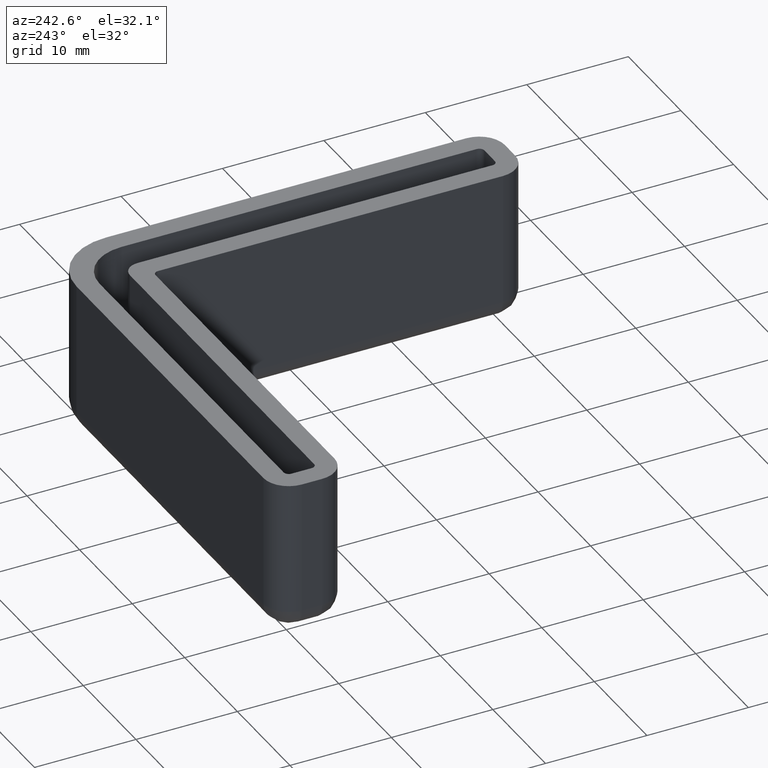
[diagram: clean part render]
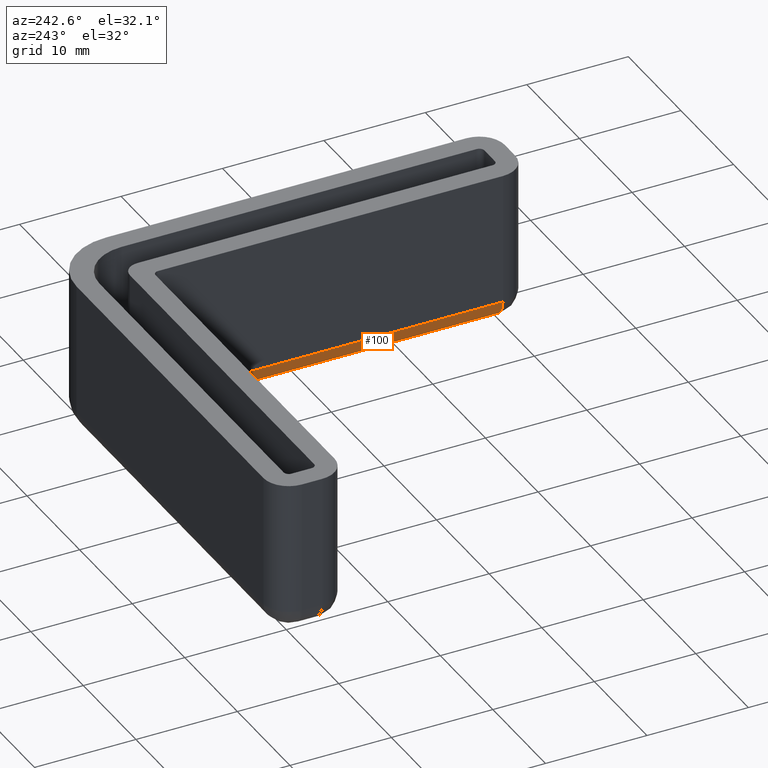
[diagram: same view with one face highlighted and labeled with its STEP entity id]
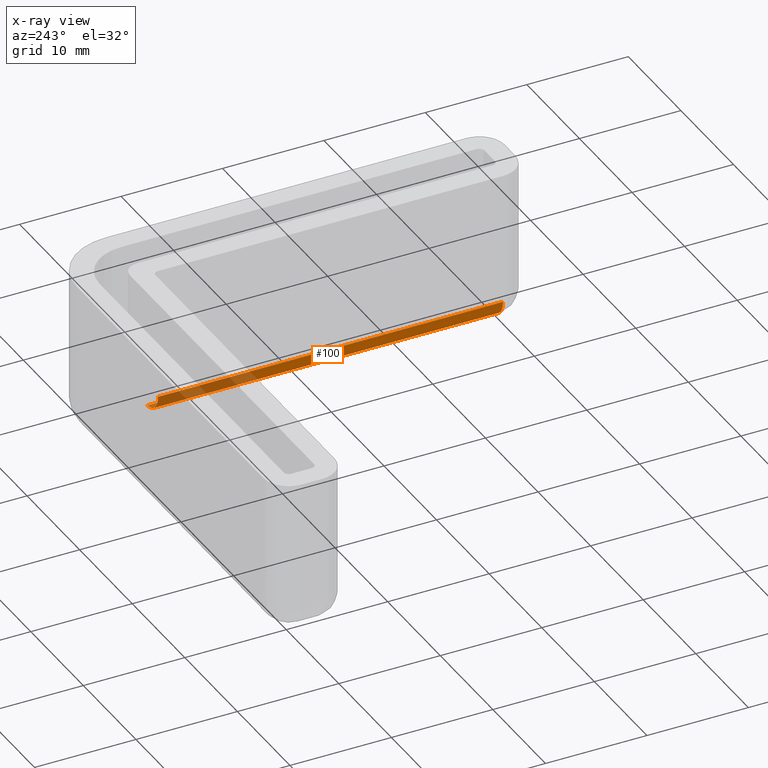
[diagram: x-ray of the same camera — body ghosted, the highlighted face saturated]
A machine part, auxiliary view. The second image highlights one B-rep face of the part: STEP entity #100.
The next image is the same camera in x-ray: the body ghosted, the highlighted face saturated — about 29% of this face is hidden behind the body in this view.
In plain terms, the highlighted cylindrical surface (edge-blend (fillet) strip) has radius 2 mm, axis along (-0, -1, 0).
Its self-contained STEP definition (entity closure, byte-faithful):
#100 = ADVANCED_FACE( '', ( #166 ), #167, .T. );
#166 = FACE_OUTER_BOUND( '', #311, .T. );
#167 = CYLINDRICAL_SURFACE( '', #312, 2.00000000000000 );
#311 = EDGE_LOOP( '', ( #563, #564, #565, #566 ) );
#312 = AXIS2_PLACEMENT_3D( '', #567, #568, #569 );
#563 = ORIENTED_EDGE( '', *, *, #742, .T. );
#564 = ORIENTED_EDGE( '', *, *, #726, .F. );
#565 = ORIENTED_EDGE( '', *, *, #740, .F. );
#566 = ORIENTED_EDGE( '', *, *, #716, .F. );
#567 = CARTESIAN_POINT( '', ( -3.00000000000000, -5.49999999999999, -13.0000000000000 ) );
#568 = DIRECTION( '', ( -1.83175957041426E-016, -1.00000000000000, 0.000000000000000 ) );
#569 = DIRECTION( '', ( -1.00000000000000, 1.83175957041426E-016, 0.000000000000000 ) );
#716 = EDGE_CURVE( '', #855, #858, #859, .T. );
#726 = EDGE_CURVE( '', #874, #876, #877, .F. );
#740 = EDGE_CURVE( '', #858, #874, #896, .T. );
#742 = EDGE_CURVE( '', #855, #876, #898, .T. );
#855 = VERTEX_POINT( '', #1045 );
#858 = VERTEX_POINT( '', #1049 );
#859 = LINE( '', #1050, #1051 );
#874 = VERTEX_POINT( '', #1071 );
#876 = VERTEX_POINT( '', #1073 );
#877 = LINE( '', #1074, #1075 );
#896 = CIRCLE( '', #1097, 2.00000000000000 );
#898 = CIRCLE( '', #1099, 2.00000000000000 );
#1045 = CARTESIAN_POINT( '', ( -5.00000000000001, -5.50000000000000, -13.0000000000000 ) );
#1049 = CARTESIAN_POINT( '', ( -5.00000000000001, -39.5000000000000, -13.0000000000000 ) );
#1050 = CARTESIAN_POINT( '', ( -5.00000000000001, -39.5000000000000, -13.0000000000000 ) );
#1051 = VECTOR( '', #1224, 1000.00000000000 );
#1071 = CARTESIAN_POINT( '', ( -3.00000000000001, -39.5000000000000, -15.0000000000000 ) );
#1073 = CARTESIAN_POINT( '', ( -3.00000000000001, -5.50000000000000, -15.0000000000000 ) );
#1074 = CARTESIAN_POINT( '', ( -3.00000000000000, -5.50000000000000, -15.0000000000000 ) );
#1075 = VECTOR( '', #1242, 1000.00000000000 );
#1097 = AXIS2_PLACEMENT_3D( '', #1276, #1277, #1278 );
#1099 = AXIS2_PLACEMENT_3D( '', #1282, #1283, #1284 );
#1224 = DIRECTION( '', ( -1.83175957041426E-016, -1.00000000000000, 0.000000000000000 ) );
#1242 = DIRECTION( '', ( -1.83175957041426E-016, -1.00000000000000, 0.000000000000000 ) );
#1276 = CARTESIAN_POINT( '', ( -3.00000000000001, -39.5000000000000, -13.0000000000000 ) );
#1277 = DIRECTION( '', ( -1.22460635382238E-016, -1.00000000000000, 3.46944695195361E-015 ) );
#1278 = DIRECTION( '', ( 4.24870678161208E-031, 3.46944695195361E-015, 1.00000000000000 ) );
#1282 = CARTESIAN_POINT( '', ( -3.00000000000001, -5.50000000000000, -13.0000000000000 ) );
#1283 = DIRECTION( '', ( -1.22460635382238E-016, -1.00000000000000, 0.000000000000000 ) );
#1284 = DIRECTION( '', ( 0.000000000000000, 0.000000000000000, 1.00000000000000 ) );